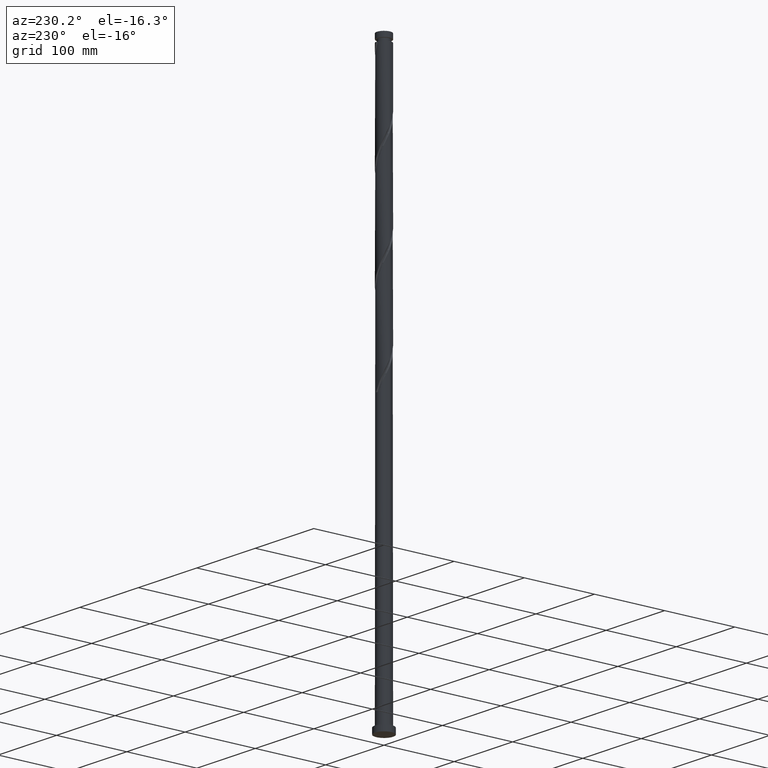
[diagram: clean part render]
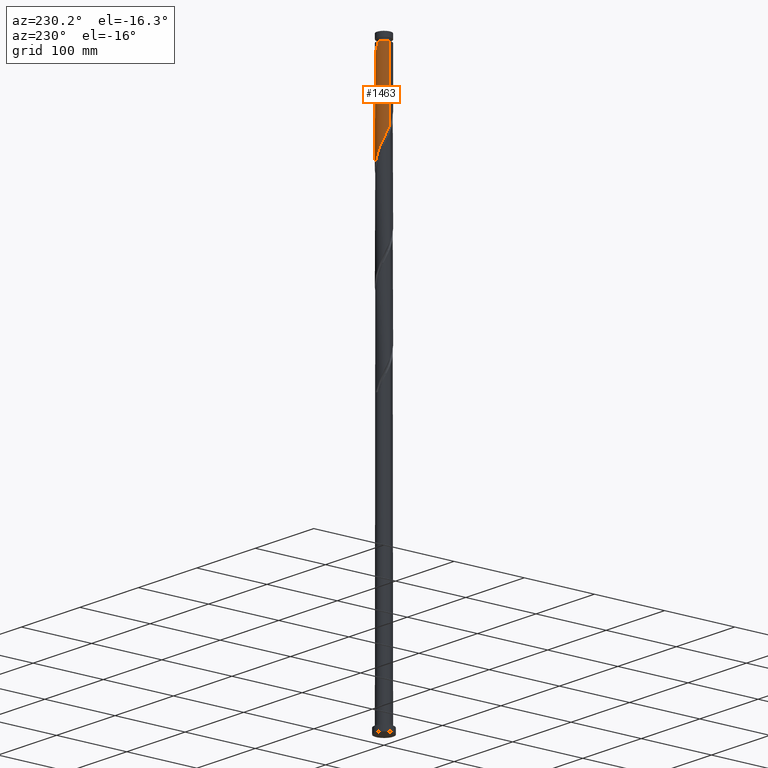
[diagram: same view with one face highlighted and labeled with its STEP entity id]
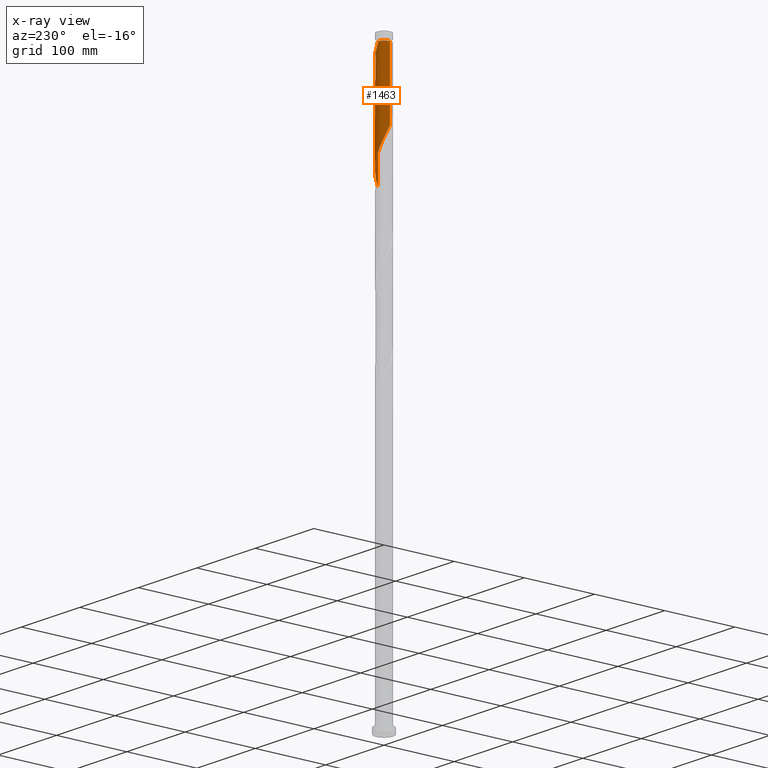
[diagram: x-ray of the same camera — body ghosted, the highlighted face saturated]
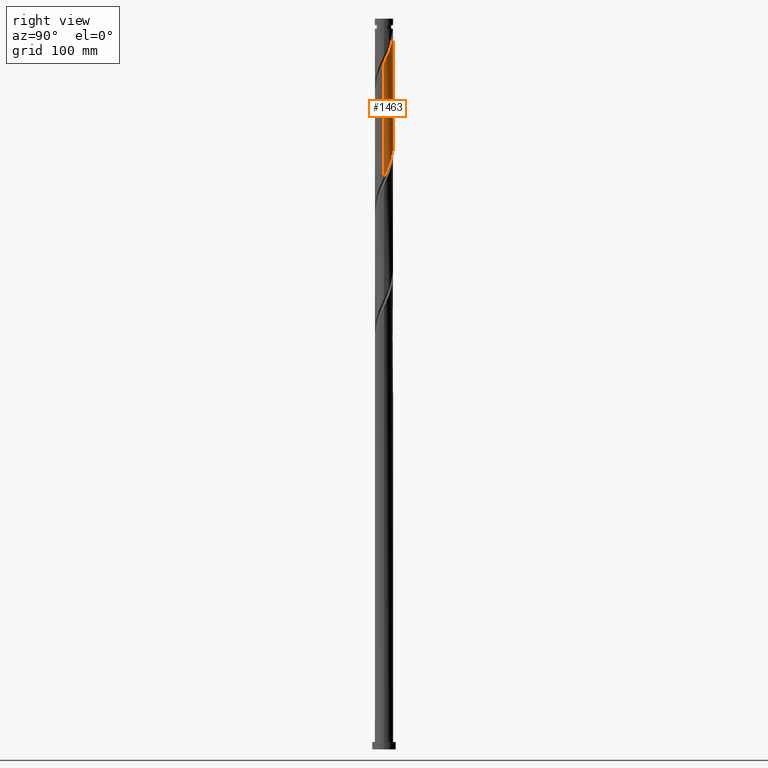
[diagram: same view with one face highlighted and labeled with its STEP entity id]
A machine part, auxiliary view. The second image highlights one B-rep face of the part: STEP entity #1463.
The next image is the same camera in x-ray: the body ghosted, the highlighted face saturated — about 0% of this face is hidden behind the body in this view.
A second angle (right view) of the same face is appended — the face is thin or edge-on in the first view.
In plain terms, the highlighted cylindrical surface (edge-blend (fillet) strip) has radius 10 mm, axis along (-0, -0, -1).
Its self-contained STEP definition (entity closure, byte-faithful):
#31 = CARTESIAN_POINT ( 'NONE',  ( -9.370807733603871981, 3.588116432185856741, 685.3896570713440042 ) ) ;
#32 = CARTESIAN_POINT ( 'NONE',  ( 10.00000000000001243, 6.538776099974785674E-15, 751.3131634670464791 ) ) ;
#65 = CARTESIAN_POINT ( 'NONE',  ( 9.011612654811258949, 4.334839946254741783, 760.8282535625721721 ) ) ;
#85 = EDGE_CURVE ( 'NONE', #315, #883, #2185, .T. ) ;
#93 = CARTESIAN_POINT ( 'NONE',  ( 2.914153784332342845, 9.565966115414672899, 778.3721132116947956 ) ) ;
#138 = CARTESIAN_POINT ( 'NONE',  ( -9.999999999999918288, 0.000000000000000000, 788.8984290011685516 ) ) ;
#177 = CARTESIAN_POINT ( 'NONE',  ( -2.121495232885088900, 9.807439782529289829, 664.3370254923967195 ) ) ;
#188 = CARTESIAN_POINT ( 'NONE',  ( 7.050111913419857324, 7.140205817716160475, 643.2843939134493212 ) ) ;
#198 = CARTESIAN_POINT ( 'NONE',  ( -9.930858854084283038, 1.173900515484967322, 690.6528149660807685 ) ) ;
#216 = DIRECTION ( 'NONE',  ( -1.000000000000000000, 0.000000000000000000, 0.000000000000000000 ) ) ;
#235 = CARTESIAN_POINT ( 'NONE',  ( 9.602197208846458665, 2.792455686742682186, 757.3194816327475110 ) ) ;
#246 = CARTESIAN_POINT ( 'NONE',  ( 10.00000000000001243, 0.5889864175343291208, 752.5636905812317536 ) ) ;
#315 = VERTEX_POINT ( 'NONE', #138 ) ;
#338 = CARTESIAN_POINT ( 'NONE',  ( 0.000000000000000000, 0.000000000000000000, 800.0000000000000000 ) ) ;
#363 = CARTESIAN_POINT ( 'NONE',  ( -2.914153784332332631, 9.565966115414667570, 666.0914114573089364 ) ) ;
#373 = CARTESIAN_POINT ( 'NONE',  ( 8.557867634899583464, 5.173287305334810071, 638.0212360187124432 ) ) ;
#386 = CARTESIAN_POINT ( 'NONE',  ( -9.011612654811246514, 4.334839946254740894, 683.6352711064317873 ) ) ;
#398 = CARTESIAN_POINT ( 'NONE',  ( 10.00000000000000178, -4.627900892676237403E-15, 626.4836945352908515 ) ) ;
#404 = ORIENTED_EDGE ( 'NONE', *, *, #408, .T. ) ;
#407 = CARTESIAN_POINT ( 'NONE',  ( 8.652417576018637035, 5.081563460323630821, 762.5826395274841616 ) ) ;
#408 = EDGE_CURVE ( 'NONE', #315, #747, #449, .T. ) ;
#416 = CARTESIAN_POINT ( 'NONE',  ( 0.4783092703628226139, 10.02286572557856204, 783.6352711064313326 ) ) ;
#427 = CARTESIAN_POINT ( 'NONE',  ( 7.115818394811946668, 7.026032206875813202, 767.8457974222212670 ) ) ;
#449 = CIRCLE ( 'NONE', #1598, 9.999999999999918288 ) ;
#541 = CARTESIAN_POINT ( 'NONE',  ( -5.191017261092578217, 8.587197267218870778, 671.3545693520457007 ) ) ;
#553 = CARTESIAN_POINT ( 'NONE',  ( 7.589654370281415652, 6.511309126409853043, 641.5300079485369906 ) ) ;
#574 = CARTESIAN_POINT ( 'NONE',  ( 9.773942403365396103, 2.114249251080854375, 631.0036921590633483 ) ) ;
#586 = CARTESIAN_POINT ( 'NONE',  ( -7.115818394811933345, 7.026032206875808761, 676.6177272467824650 ) ) ;
#686 = VERTEX_POINT ( 'NONE', #2309 ) ;
#726 = CARTESIAN_POINT ( 'NONE',  ( -5.862321014293805810, 8.101431498529709785, 673.1089553169579176 ) ) ;
#735 = VECTOR ( 'NONE', #2060, 1000.000000000000000 ) ;
#747 = VERTEX_POINT ( 'NONE', #1934 ) ;
#749 = CARTESIAN_POINT ( 'NONE',  ( 9.949134091119720580, 1.304357293080270708, 629.2493061941512451 ) ) ;
#760 = CARTESIAN_POINT ( 'NONE',  ( -0.4783092703628204490, 10.02286572557855493, 660.8282535625723995 ) ) ;
#772 = CARTESIAN_POINT ( 'NONE',  ( -4.448914798436078399, 8.955844857759458932, 669.6001833871334838 ) ) ;
#793 = CARTESIAN_POINT ( 'NONE',  ( -0.3498072259164496933, 9.993879872436775003, 785.3896570713438905 ) ) ;
#824 = CARTESIAN_POINT ( 'NONE',  ( 9.930858854084291920, 1.173900515484962215, 753.8107097029230772 ) ) ;
#883 = VERTEX_POINT ( 'NONE', #1123 ) ;
#895 = EDGE_CURVE ( 'NONE', #883, #686, #1007, .T. ) ;
#923 = CARTESIAN_POINT ( 'NONE',  ( 9.598750715611071627, 2.924141209081429604, 632.7580781239757926 ) ) ;
#931 = EDGE_CURVE ( 'NONE', #2338, #686, #1078, .T. ) ;
#938 = ORIENTED_EDGE ( 'NONE', *, *, #895, .F. ) ;
#941 = CARTESIAN_POINT ( 'NONE',  ( 4.349696364606918664, 9.042497367808167041, 650.3019377730985298 ) ) ;
#955 = EDGE_CURVE ( 'NONE', #2338, #747, #1507, .T. ) ;
#963 = CARTESIAN_POINT ( 'NONE',  ( 5.862321014293816468, 8.101431498529711561, 771.3545693520458144 ) ) ;
#974 = CARTESIAN_POINT ( 'NONE',  ( -1.177923722195688638, 9.964894019294991523, 787.1440430362562211 ) ) ;
#994 = CARTESIAN_POINT ( 'NONE',  ( 7.698012022128849274, 6.436398683911067842, 766.0914114573089364 ) ) ;
#1007 =( BOUNDED_CURVE ( )  B_SPLINE_CURVE ( 2, ( #1273, #2029, #198, #1641, #1631, #31, #386, #1092, #1864, #1651, #586, #1113, #726, #541, #772, #1462, #363, #177, #1660, #760, #2019, #2206, #1102, #1303, #1852, #941, #1672, #1827, #2234, #188, #553, #1284, #373, #1840, #1484, #923, #574, #749, #1994, #1473, #398 ),
 .UNSPECIFIED., .F., .F. ) 
 B_SPLINE_CURVE_WITH_KNOTS ( ( 3, 2, 2, 2, 2, 2, 2, 2, 2, 2, 2, 2, 2, 2, 2, 2, 2, 2, 2, 2, 3 ),
 ( 0.4295295809515956575, 0.4342105263157894912, 0.4407894736842105088, 0.4473684210526315819, 0.4539473684210526550, 0.4605263157894736725, 0.4671052631578947456, 0.4736842105263157632, 0.4802631578947368363, 0.4868421052631579093, 0.4934210526315789269, 0.5000000000000000000, 0.5065789473684210176, 0.5131578947368421462, 0.5197368421052631637, 0.5263157894736841813, 0.5328947368421053099, 0.5394736842105263275, 0.5460526315789473450, 0.5526315789473684736, 0.5545295809515952135 ),
 .UNSPECIFIED. ) 
 CURVE ( )  GEOMETRIC_REPRESENTATION_ITEM ( )  RATIONAL_B_SPLINE_CURVE ( ( 0.9078162034606143127, 0.9068816855934215271, 0.9090909090909431445, 0.9059859027333700965, 0.9090909090909431445, 0.9059859027333700965, 0.9090909090909431445, 0.9059859027333700965, 0.9090909090909431445, 0.9059859027333700965, 0.9090909090909431445, 0.9059859027333700965, 0.9090909090909431445, 0.9059859027333700965, 0.9090909090909431445, 0.9059859027333700965, 0.9090909090909431445, 0.9059859027333700965, 0.9090909090909431445, 0.9059859027333700965, 0.9090909090909431445, 0.9059859027333700965, 0.9090909090909431445, 0.9059859027333700965, 0.9090909090909431445, 0.9059859027333700965, 0.9090909090909431445, 0.9059859027333700965, 0.9090909090909431445, 0.9059859027333700965, 0.9090909090909431445, 0.9059859027333700965, 0.9090909090909431445, 0.9059859027333700965, 0.9090909090909431445, 0.9059859027333700965, 0.9090909090909431445, 0.9059859027333700965, 0.9090909090909431445, 0.9081951262308919359, 0.9078162034606143127 ) ) 
 REPRESENTATION_ITEM ( '' )  );
#1048 = FACE_OUTER_BOUND ( 'NONE', #2156, .T. ) ;
#1066 = DIRECTION ( 'NONE',  ( -1.000000000000000000, 0.000000000000000000, 0.000000000000000000 ) ) ;
#1078 = LINE ( 'NONE', #1814, #735 ) ;
#1092 = CARTESIAN_POINT ( 'NONE',  ( -8.652417576018629930, 5.081563460323629933, 681.8808851415195704 ) ) ;
#1102 = CARTESIAN_POINT ( 'NONE',  ( 1.989974874213252809, 9.800000000000000711, 655.5650956678352941 ) ) ;
#1113 = CARTESIAN_POINT ( 'NONE',  ( -6.533624767495032515, 7.615665729840548792, 674.8633412818705892 ) ) ;
#1123 = CARTESIAN_POINT ( 'NONE',  ( -10.00000000000000178, -3.135029636974225439E-15, 693.1503612019574803 ) ) ;
#1133 = CARTESIAN_POINT ( 'NONE',  ( -1.989974874213191969, 9.800000000000006040, 788.8984290011685516 ) ) ;
#1144 = CARTESIAN_POINT ( 'NONE',  ( 9.833586684089031138, 1.996794941299503634, 755.5650956678350667 ) ) ;
#1242 = DIRECTION ( 'NONE',  ( -0.000000000000000000, -0.000000000000000000, -1.000000000000000000 ) ) ;
#1273 = CARTESIAN_POINT ( 'NONE',  ( -10.00000000000000178, -3.135029636974225439E-15, 693.1503612019574803 ) ) ;
#1284 = CARTESIAN_POINT ( 'NONE',  ( 8.129196827142976645, 5.882412435103549164, 639.7756219836250011 ) ) ;
#1295 = DIRECTION ( 'NONE',  ( -0.000000000000000000, -0.000000000000000000, -1.000000000000000000 ) ) ;
#1303 = CARTESIAN_POINT ( 'NONE',  ( 2.802026026230769240, 9.635105980705024109, 653.8107097029229635 ) ) ;
#1313 = CARTESIAN_POINT ( 'NONE',  ( 2.121495232885097781, 9.807439782529295158, 780.1264991766070125 ) ) ;
#1353 = CARTESIAN_POINT ( 'NONE',  ( 4.448914798436082840, 8.955844857759466038, 774.8633412818702482 ) ) ;
#1384 = ORIENTED_EDGE ( 'NONE', *, *, #85, .F. ) ;
#1440 = CARTESIAN_POINT ( 'NONE',  ( -10.00000000000000178, 0.000000000000000000, 800.0000000000000000 ) ) ;
#1462 = CARTESIAN_POINT ( 'NONE',  ( -3.706812335779576806, 9.324492448300048864, 667.8457974222213807 ) ) ;
#1463 = ADVANCED_FACE ( 'NONE', ( #1048 ), #2299, .T. ) ;
#1473 = CARTESIAN_POINT ( 'NONE',  ( 10.00000000000000178, 0.2384733424517155587, 626.9900175537311497 ) ) ;
#1484 = CARTESIAN_POINT ( 'NONE',  ( 9.292644579133625626, 3.694151692323757175, 634.5124640888878957 ) ) ;
#1507 =( BOUNDED_CURVE ( )  B_SPLINE_CURVE ( 2, ( #2075, #246, #824, #1144, #235, #2284, #65, #407, #2267, #994, #427, #1697, #963, #1707, #1353, #1728, #93, #1313, #2047, #416, #793, #974, #1133 ),
 .UNSPECIFIED., .F., .T. ) 
 B_SPLINE_CURVE_WITH_KNOTS ( ( 3, 2, 2, 2, 2, 2, 2, 2, 2, 2, 2, 3 ),
 ( 0.6795295809515954355, 0.6842105263157894912, 0.6907894736842105088, 0.6973684210526315264, 0.7039473684210525439, 0.7105263157894735615, 0.7171052631578944681, 0.7236842105263154856, 0.7302631578947366142, 0.7368421052631577428, 0.7434210526315786494, 0.7499999999999996669 ),
 .UNSPECIFIED. ) 
 CURVE ( )  GEOMETRIC_REPRESENTATION_ITEM ( )  RATIONAL_B_SPLINE_CURVE ( ( 0.9078162034606181985, 0.9068816855934254129, 0.9090909090909469192, 0.9059859027333740933, 0.9090909090909469192, 0.9059859027333740933, 0.9090909090909469192, 0.9059859027333740933, 0.9090909090909469192, 0.9059859027333740933, 0.9090909090909469192, 0.9059859027333740933, 0.9090909090909469192, 0.9059859027333740933, 0.9090909090909469192, 0.9059859027333740933, 0.9090909090909469192, 0.9059859027333740933, 0.9090909090909469192, 0.9059859027333740933, 0.9090909090909469192, 0.9059859027333743153, 0.9090909090909466972 ) ) 
 REPRESENTATION_ITEM ( '' )  );
#1598 = AXIS2_PLACEMENT_3D ( 'NONE', #2209, #1295, #216 ) ;
#1631 = CARTESIAN_POINT ( 'NONE',  ( -9.602197208846448007, 2.792455686742680854, 687.1440430362564484 ) ) ;
#1641 = CARTESIAN_POINT ( 'NONE',  ( -9.833586684089031138, 1.996794941299505632, 688.8984290011686653 ) ) ;
#1651 = CARTESIAN_POINT ( 'NONE',  ( -7.698012022128840393, 6.436398683911070506, 678.3721132116950230 ) ) ;
#1660 = CARTESIAN_POINT ( 'NONE',  ( -1.299902251623954896, 9.915152754053920603, 662.5826395274842753 ) ) ;
#1672 = CARTESIAN_POINT ( 'NONE',  ( 5.064207344787845066, 8.622865183278520362, 648.5475518081860855 ) ) ;
#1697 = CARTESIAN_POINT ( 'NONE',  ( 6.533624767495038732, 7.615665729840554121, 769.6001833871334838 ) ) ;
#1707 = CARTESIAN_POINT ( 'NONE',  ( 5.191017261092587098, 8.587197267218869001, 773.1089553169576902 ) ) ;
#1728 = CARTESIAN_POINT ( 'NONE',  ( 3.706812335779582135, 9.324492448300055969, 776.6177272467824650 ) ) ;
#1763 = ORIENTED_EDGE ( 'NONE', *, *, #931, .T. ) ;
#1814 = CARTESIAN_POINT ( 'NONE',  ( 10.00000000000000178, 1.224646799147353454E-15, 800.0000000000000000 ) ) ;
#1827 = CARTESIAN_POINT ( 'NONE',  ( 5.778718324968772357, 8.203232998748877236, 646.7931658432739823 ) ) ;
#1840 = CARTESIAN_POINT ( 'NONE',  ( 8.986538442656179626, 4.464162175566081636, 636.2668500538001126 ) ) ;
#1852 = CARTESIAN_POINT ( 'NONE',  ( 3.575861195418849281, 9.338801674256592023, 652.0563237380106330 ) ) ;
#1861 = ORIENTED_EDGE ( 'NONE', *, *, #955, .F. ) ;
#1864 = CARTESIAN_POINT ( 'NONE',  ( -8.175214799073732053, 5.758981072117348887, 680.1264991766070125 ) ) ;
#1934 = CARTESIAN_POINT ( 'NONE',  ( -1.989974874213192191, 9.800000000000006040, 788.8984290011685516 ) ) ;
#1954 = DIRECTION ( 'NONE',  ( -0.000000000000000000, -0.000000000000000000, -1.000000000000000000 ) ) ;
#1994 = CARTESIAN_POINT ( 'NONE',  ( 9.988632557599629536, 0.4766756017049183503, 627.4949202292390282 ) ) ;
#2019 = CARTESIAN_POINT ( 'NONE',  ( 0.3498072259164571318, 9.993879872436764344, 659.0738675976598415 ) ) ;
#2029 = CARTESIAN_POINT ( 'NONE',  ( -10.00000000000000000, 0.5889864175343589858, 691.8998340877722057 ) ) ;
#2047 = CARTESIAN_POINT ( 'NONE',  ( 1.299902251623959337, 9.915152754053927708, 781.8808851415193431 ) ) ;
#2060 = DIRECTION ( 'NONE',  ( -0.000000000000000000, -0.000000000000000000, -1.000000000000000000 ) ) ;
#2066 = AXIS2_PLACEMENT_3D ( 'NONE', #338, #1242, #1066 ) ;
#2075 = CARTESIAN_POINT ( 'NONE',  ( 10.00000000000001066, 6.538776099974785674E-15, 751.3131634670464791 ) ) ;
#2156 = EDGE_LOOP ( 'NONE', ( #1861, #1763, #938, #1384, #404 ) ) ;
#2185 = LINE ( 'NONE', #1440, #2260 ) ;
#2206 = CARTESIAN_POINT ( 'NONE',  ( 1.177923722195735934, 9.964894019294979088, 657.3194816327476246 ) ) ;
#2209 = CARTESIAN_POINT ( 'NONE',  ( 0.000000000000000000, 0.000000000000000000, 788.8984290011685516 ) ) ;
#2234 = CARTESIAN_POINT ( 'NONE',  ( 6.414415119194313952, 7.671719408232513970, 645.0387798783615381 ) ) ;
#2260 = VECTOR ( 'NONE', #1954, 1000.000000000000000 ) ;
#2267 = CARTESIAN_POINT ( 'NONE',  ( 8.175214799073742711, 5.758981072117353328, 764.3370254923967195 ) ) ;
#2284 = CARTESIAN_POINT ( 'NONE',  ( 9.370807733603886192, 3.588116432185851856, 759.0738675976598415 ) ) ;
#2299 = CYLINDRICAL_SURFACE ( 'NONE', #2066, 10.00000000000000178 ) ;
#2309 = CARTESIAN_POINT ( 'NONE',  ( 10.00000000000000178, -4.627900892676237403E-15, 626.4836945352908515 ) ) ;
#2338 = VERTEX_POINT ( 'NONE', #32 ) ;